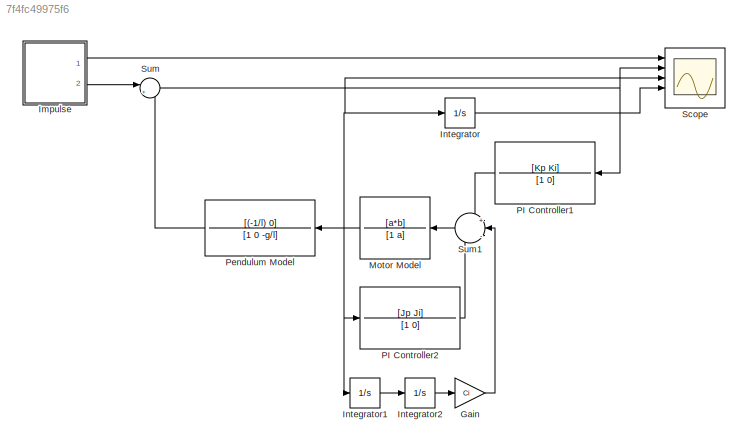
MODEL slx_7f4fc49975f6
KIND model
CONFIG AbsTol = auto
CONFIG EnableMultiTasking = off
CONFIG FixedStep = auto
CONFIG MaxStep = 1e-4
CONFIG MinStep = auto
CONFIG RelTol = 1e-5
CONFIG SampleTimeConstraint = Unconstrained
CONFIG Solver = VariableStepAuto
CONFIG SolverName = VariableStepAuto
CONFIG StartTime = 0.0
CONFIG StopTime = 5
WORKSPACE source: mxarray member
WORKSPACE K = 184.3
WORKSPACE Ki = 0.01
WORKSPACE Kp = 0.1
WORKSPACE g = -9.8
WORKSPACE l = 0.5
WORKSPACE tau = 0.043
BLOCK [Gain] Gain
  Gain = Ci
  OutDataTypeStr = Inherit: Inherit via internal rule
  ParamDataTypeStr = Inherit: Inherit via internal rule
  SaturateOnIntegerOverflow = off
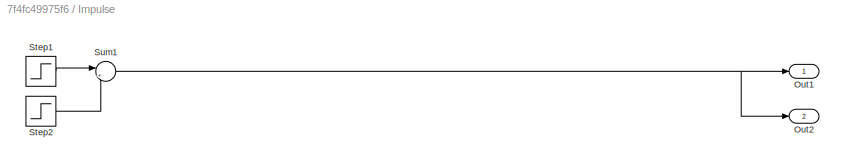
BLOCK [SubSystem] Impulse
  Ports = [0, 2]
  RequestExecContextInheritance = off
BLOCK [Outport] Impulse/Out1
  IconDisplay = Port number
  VectorParamsAs1DForOutWhenUnconnected = on
BLOCK [Outport] Impulse/Out2
  IconDisplay = Port number
  Port = 2
  VectorParamsAs1DForOutWhenUnconnected = on
BLOCK [Step] Impulse/Step1
  After = 15
  SampleTime = 0
  Time = 0.25
BLOCK [Step] Impulse/Step2
  After = 15
  SampleTime = 0
  Time = 0.3
BLOCK [Sum] Impulse/Sum1
  IconShape = round
  InputSameDT = off
  Inputs = |+-
  OutDataTypeStr = Inherit: Inherit via internal rule
  Ports = [2, 1]
  SaturateOnIntegerOverflow = off
BLOCK [Integrator] Integrator
  Ports = [1, 1]
BLOCK [Integrator] Integrator1
  Ports = [1, 1]
BLOCK [Integrator] Integrator2
  Ports = [1, 1]
BLOCK [TransferFcn] Motor Model
  Denominator = [1 a]
  Numerator = [a*b]
BLOCK [TransferFcn] PI Controller1
  Denominator = [1 0]
  Numerator = [Kp Ki]
BLOCK [TransferFcn] PI Controller2
  Denominator = [1 0]
  Numerator = [Jp Ji]
BLOCK [TransferFcn] Pendulum Model
  Denominator = [1 0 -g/l]
  Numerator = [(-1/l) 0]
BLOCK [Scope] Scope
  Floating = off
  NumInputPorts = 5
  Ports = [5]
  ScopeSpecificationString = Simulink.scopes.TimeScopeBlockCfg('CurrentConfiguration', extmgr.ConfigurationSet(extmgr.Configuration('Core','General UI',true),extmgr.Configuration('Core','Source UI',true),extmgr.Configuration('Sources','WiredSimulink',true),extmgr.Configuration('Visuals','Time Domain',true,'SerializedDisplays',{struct('MinYLimReal','-32.46952','MaxYLimReal','39.20502','YLabelReal','','MinYLimMag','0.00000','Ma...<+1614ch>
BLOCK [Sum] Sum
  IconShape = round
  InputSameDT = off
  Inputs = |++
  OutDataTypeStr = Inherit: Inherit via internal rule
  Ports = [2, 1]
  SaturateOnIntegerOverflow = off
BLOCK [Sum] Sum1
  IconShape = round
  InputSameDT = off
  Inputs = +|-|-
  OutDataTypeStr = Inherit: Inherit via internal rule
  Ports = [3, 1]
  SaturateOnIntegerOverflow = off
LINE Gain:1 -> Sum1:2
LINE Impulse/Step1:1 -> Impulse/Sum1:1
LINE Impulse/Step2:1 -> Impulse/Sum1:2
NET Impulse/Sum1:1 -> Impulse/Out1:1, Impulse/Out2:1
LINE Impulse:1 -> Scope:1
LINE Impulse:2 -> Sum:1
LINE Integrator1:1 -> Integrator2:1
LINE Integrator2:1 -> Gain:1
LINE Integrator:1 -> Scope:4
NET Motor Model:1 -> Integrator1:1, Integrator:1, PI Controller2:1, Pendulum Model:1, Scope:3
LINE PI Controller1:1 -> Sum1:1
LINE PI Controller2:1 -> Sum1:3
LINE Pendulum Model:1 -> Sum:2
LINE Sum1:1 -> Motor Model:1
NET Sum:1 -> PI Controller1:1, Scope:2
note: NET lines group one-source signal fan-out (src -> all destinations, sorted); 1:1 wires keep LINE
